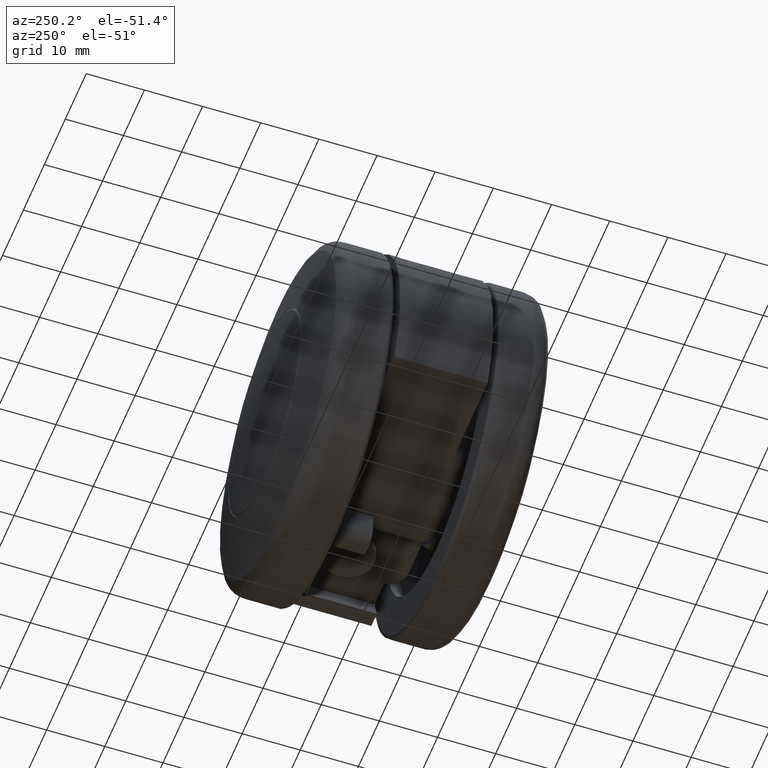
[diagram: clean part render]
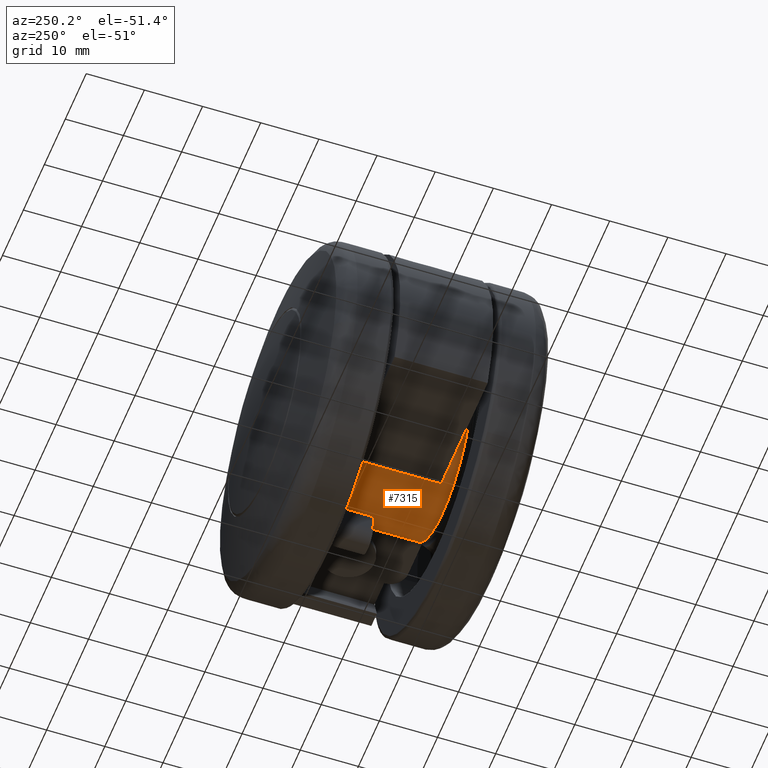
[diagram: same view with one face highlighted and labeled with its STEP entity id]
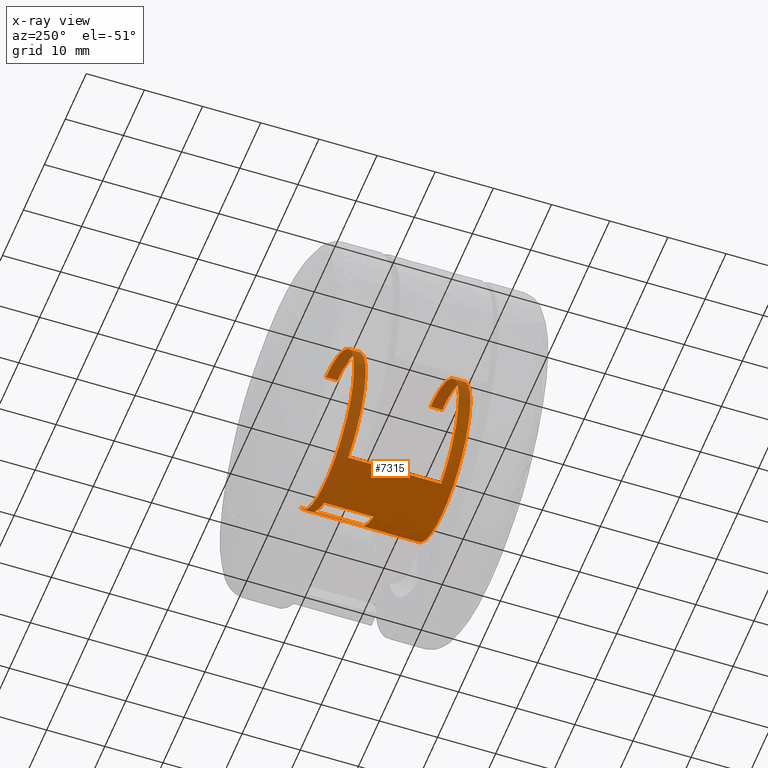
[diagram: x-ray of the same camera — body ghosted, the highlighted face saturated]
A machine part, auxiliary view. The second image highlights one B-rep face of the part: STEP entity #7315.
The next image is the same camera in x-ray: the body ghosted, the highlighted face saturated — about 38% of this face is hidden behind the body in this view.
In plain terms, the highlighted face is a freeform B-spline surface patch.
Its self-contained STEP definition (entity closure, byte-faithful):
#5000=CARTESIAN_POINT('',(0.0,10.0,13.500000000000000));
#5001=VERTEX_POINT('',#5000);
#5034=CARTESIAN_POINT('',(12.0,10.0,-6.184658438426480));
#5035=VERTEX_POINT('',#5034);
#5063=CARTESIAN_POINT('',(0.0,10.0,13.500000000000000));
#5064=CARTESIAN_POINT('',(-11.512032645037300,10.0,13.500000000000000));
#5065=CARTESIAN_POINT('',(-13.330507916871690,10.0,2.132500569336663));
#5066=CARTESIAN_POINT('',(-15.148983188706090,10.0,-9.234998861326675));
#5067=CARTESIAN_POINT('',(-4.211454181077892,10.0,-12.826287603226490));
#5068=CARTESIAN_POINT('',(6.726074826550300,10.0,-16.417576345126307));
#5069=CARTESIAN_POINT('',(12.000000000000011,10.0,-6.184658438426480));
#5077=(BOUNDED_CURVE()B_SPLINE_CURVE(2,(#5063,#5064,#5065,#5066,#5067,#5068,#5069),.UNSPECIFIED.,.F.,.U.)B_SPLINE_CURVE_WITH_KNOTS((3,2,2,3),(0.0,0.333333333333333,0.666666666666667,1.0),.UNSPECIFIED.)CURVE()GEOMETRIC_REPRESENTATION_ITEM()RATIONAL_B_SPLINE_CURVE((1.0,0.760908340451085,1.0,0.760908340451085,1.0,0.760908340451085,1.0))REPRESENTATION_ITEM(''));
#5078=EDGE_CURVE('',#5001,#5035,#5077,.T.);
#5112=CARTESIAN_POINT('',(0.0,-10.0,13.500000000000000));
#5113=VERTEX_POINT('',#5112);
#5129=CARTESIAN_POINT('',(12.0,-10.0,-6.184658438426480));
#5130=VERTEX_POINT('',#5129);
#5131=CARTESIAN_POINT('',(12.000000000000011,-10.0,-6.184658438426474));
#5132=CARTESIAN_POINT('',(6.726074826550309,-10.0,-16.417576345126310));
#5133=CARTESIAN_POINT('',(-4.211454181077886,-10.0,-12.826287603226490));
#5134=CARTESIAN_POINT('',(-15.148983188706080,-10.0,-9.234998861326682));
#5135=CARTESIAN_POINT('',(-13.330507916871690,-10.0,2.132500569336657));
#5136=CARTESIAN_POINT('',(-11.512032645037301,-10.0,13.500000000000004));
#5137=CARTESIAN_POINT('',(0.0,-10.0,13.500000000000000));
#5145=(BOUNDED_CURVE()B_SPLINE_CURVE(2,(#5131,#5132,#5133,#5134,#5135,#5136,#5137),.UNSPECIFIED.,.F.,.U.)B_SPLINE_CURVE_WITH_KNOTS((3,2,2,3),(0.0,0.333333333333333,0.666666666666667,1.0),.UNSPECIFIED.)CURVE()GEOMETRIC_REPRESENTATION_ITEM()RATIONAL_B_SPLINE_CURVE((1.0,0.760908340451085,1.0,0.760908340451085,1.0,0.760908340451085,1.0))REPRESENTATION_ITEM(''));
#5146=EDGE_CURVE('',#5130,#5113,#5145,.T.);
#5716=CARTESIAN_POINT('',(11.0,0.0,-7.826237921249259));
#5717=VERTEX_POINT('',#5716);
#5723=CARTESIAN_POINT('',(5.0,0.0,-12.539936203984460));
#5724=VERTEX_POINT('',#5723);
#5725=CARTESIAN_POINT('',(4.999999999999996,0.0,-12.539936203984450));
#5726=CARTESIAN_POINT('',(8.694342234395652,0.0,-11.066905490629710));
#5727=CARTESIAN_POINT('',(11.0,0.0,-7.826237921249261));
#5735=(BOUNDED_CURVE()B_SPLINE_CURVE(2,(#5725,#5726,#5727),.UNSPECIFIED.,.F.,.U.)CURVE()GEOMETRIC_REPRESENTATION_ITEM()QUASI_UNIFORM_CURVE()RATIONAL_B_SPLINE_CURVE((1.0,0.959238558692230,1.0))REPRESENTATION_ITEM(''));
#5736=EDGE_CURVE('',#5724,#5717,#5735,.T.);
#5790=CARTESIAN_POINT('',(5.0,8.500000000000000,-12.539936203984441));
#5791=VERTEX_POINT('',#5790);
#5797=CARTESIAN_POINT('',(11.0,8.500000000000000,-7.826237921249259));
#5798=VERTEX_POINT('',#5797);
#5799=CARTESIAN_POINT('',(5.000000000000004,8.500000000000000,-12.539936203984450));
#5800=CARTESIAN_POINT('',(8.694342234395650,8.500000000000000,-11.066905490629708));
#5801=CARTESIAN_POINT('',(11.0,8.500000000000000,-7.826237921249261));
#5809=(BOUNDED_CURVE()B_SPLINE_CURVE(2,(#5799,#5800,#5801),.UNSPECIFIED.,.F.,.U.)CURVE()GEOMETRIC_REPRESENTATION_ITEM()QUASI_UNIFORM_CURVE()RATIONAL_B_SPLINE_CURVE((1.0,0.959238558692230,1.0))REPRESENTATION_ITEM(''));
#5810=EDGE_CURVE('',#5791,#5798,#5809,.T.);
#5872=CARTESIAN_POINT('',(11.0,8.500000000000000,-7.826237921249259));
#5873=CARTESIAN_POINT('',(11.0,0.0,-7.826237921249259));
#5874=QUASI_UNIFORM_CURVE('',1,(#5872,#5873),.UNSPECIFIED.,.F.,.U.);
#5875=EDGE_CURVE('',#5798,#5717,#5874,.T.);
#5886=CARTESIAN_POINT('',(5.0,8.500000000000000,-12.539936203984441));
#5887=CARTESIAN_POINT('',(5.0,0.0,-12.539936203984460));
#5888=QUASI_UNIFORM_CURVE('',1,(#5886,#5887),.UNSPECIFIED.,.F.,.U.);
#5889=EDGE_CURVE('',#5791,#5724,#5888,.T.);
#5942=CARTESIAN_POINT('',(0.0,7.999999999999789,13.500000000000000));
#5943=VERTEX_POINT('',#5942);
#5956=CARTESIAN_POINT('',(0.0,7.999999999999789,13.500000000000000));
#5957=CARTESIAN_POINT('',(0.0,10.0,13.500000000000000));
#5958=QUASI_UNIFORM_CURVE('',1,(#5956,#5957),.UNSPECIFIED.,.F.,.U.);
#5959=EDGE_CURVE('',#5943,#5001,#5958,.T.);
#5975=CARTESIAN_POINT('',(0.0,-8.0,13.500000000000000));
#5976=VERTEX_POINT('',#5975);
#5982=CARTESIAN_POINT('',(0.0,-10.0,13.500000000000000));
#5983=CARTESIAN_POINT('',(0.0,-8.0,13.500000000000000));
#5984=QUASI_UNIFORM_CURVE('',1,(#5982,#5983),.UNSPECIFIED.,.F.,.U.);
#5985=EDGE_CURVE('',#5113,#5976,#5984,.T.);
#6235=CARTESIAN_POINT('',(12.0,10.0,-6.184658438426480));
#6236=CARTESIAN_POINT('',(12.0,-10.0,-6.184658438426480));
#6237=QUASI_UNIFORM_CURVE('',1,(#6235,#6236),.UNSPECIFIED.,.F.,.U.);
#6238=EDGE_CURVE('',#5035,#5130,#6237,.T.);
#6265=CARTESIAN_POINT('',(-5.099019513592780,7.999999999999789,-12.500000000000000));
#6266=VERTEX_POINT('',#6265);
#6272=CARTESIAN_POINT('',(-5.099019513592780,-8.0,-12.500000000000000));
#6273=VERTEX_POINT('',#6272);
#6274=CARTESIAN_POINT('',(-5.099019513592780,7.999999999999789,-12.500000000000000));
#6275=CARTESIAN_POINT('',(-5.099019513592780,-8.0,-12.500000000000000));
#6276=QUASI_UNIFORM_CURVE('',1,(#6274,#6275),.UNSPECIFIED.,.F.,.U.);
#6277=EDGE_CURVE('',#6266,#6273,#6276,.T.);
#7225=CARTESIAN_POINT('',(-5.099019513592777,-8.0,-12.500000000000000));
#7226=CARTESIAN_POINT('',(-15.385684458492184,-8.0,-8.303847577293375));
#7227=CARTESIAN_POINT('',(-13.247641299491770,-8.0,2.598076211353310));
#7228=CARTESIAN_POINT('',(-11.109598140491357,-8.0,13.499999999999998));
#7229=CARTESIAN_POINT('',(0.0,-8.0,13.500000000000000));
#7237=(BOUNDED_CURVE()B_SPLINE_CURVE(2,(#7225,#7226,#7227,#7228,#7229),.UNSPECIFIED.,.F.,.U.)B_SPLINE_CURVE_WITH_KNOTS((3,2,3),(0.0,0.500000000000000,1.0),.UNSPECIFIED.)CURVE()GEOMETRIC_REPRESENTATION_ITEM()RATIONAL_B_SPLINE_CURVE((1.0,0.772156101358357,1.0,0.772156101358357,1.0))REPRESENTATION_ITEM(''));
#7238=EDGE_CURVE('',#6273,#5976,#7237,.T.);
#7249=CARTESIAN_POINT('',(0.0,7.999999999999789,13.500000000000000));
#7250=CARTESIAN_POINT('',(-11.109598140491356,7.999999999999789,13.499999999999996));
#7251=CARTESIAN_POINT('',(-13.247641299491770,7.999999999999789,2.598076211353315));
#7252=CARTESIAN_POINT('',(-15.385684458492182,7.999999999999789,-8.303847577293372));
#7253=CARTESIAN_POINT('',(-5.099019513592782,7.999999999999789,-12.500000000000000));
#7261=(BOUNDED_CURVE()B_SPLINE_CURVE(2,(#7249,#7250,#7251,#7252,#7253),.UNSPECIFIED.,.F.,.U.)B_SPLINE_CURVE_WITH_KNOTS((3,2,3),(0.0,0.500000000000000,1.0),.UNSPECIFIED.)CURVE()GEOMETRIC_REPRESENTATION_ITEM()RATIONAL_B_SPLINE_CURVE((1.0,0.772156101358357,1.0,0.772156101358357,1.0))REPRESENTATION_ITEM(''));
#7262=EDGE_CURVE('',#5943,#6266,#7261,.T.);
#7277=CARTESIAN_POINT('',(12.157783383951241,10.500000000000000,-5.868415730750427));
#7278=CARTESIAN_POINT('',(12.157783383951241,-10.512499999999999,-5.868415730750427));
#7279=CARTESIAN_POINT('',(7.026401320377255,10.500000000000002,-16.499263041434656));
#7280=CARTESIAN_POINT('',(7.026401320377255,-10.512500000000001,-16.499263041434656));
#7281=CARTESIAN_POINT('',(-4.193992448291368,10.500000000000000,-12.832007923301591));
#7282=CARTESIAN_POINT('',(-4.193992448291368,-10.512499999999999,-12.832007923301591));
#7283=CARTESIAN_POINT('',(-15.414386216959988,10.500000000000002,-9.164752805168533));
#7284=CARTESIAN_POINT('',(-15.414386216959988,-10.512500000000001,-9.164752805168533));
#7285=CARTESIAN_POINT('',(-13.276821363236760,10.500000000000000,2.444588817920089));
#7286=CARTESIAN_POINT('',(-13.276821363236760,-10.512499999999999,2.444588817920089));
#7287=CARTESIAN_POINT('',(-11.139256509513517,10.500000000000002,14.053930441008712));
#7288=CARTESIAN_POINT('',(-11.139256509513517,-10.512500000000001,14.053930441008712));
#7289=CARTESIAN_POINT('',(0.651480740693012,10.500000000000000,13.484271313070870));
#7290=CARTESIAN_POINT('',(0.651480740693012,-10.512499999999999,13.484271313070870));
#7298=(BOUNDED_SURFACE()B_SPLINE_SURFACE(1,2,((#7277,#7279,#7281,#7283,#7285,#7287,#7289),(#7278,#7280,#7282,#7284,#7286,#7288,#7290)),.UNSPECIFIED.,.F.,.F.,.U.)B_SPLINE_SURFACE_WITH_KNOTS((2,2),(3,2,2,3),(0.0,21.012499999999999),(0.0,20.279340339526222,40.558680679052443,60.838021018578658),.UNSPECIFIED.)GEOMETRIC_REPRESENTATION_ITEM()RATIONAL_B_SPLINE_SURFACE(((1.0,0.752797991535748,1.0,0.752797991535748,1.0,0.752797991535748,1.0),(1.0,0.752797991535748,1.0,0.752797991535748,1.0,0.752797991535748,1.0)))REPRESENTATION_ITEM('')SURFACE());
#7299=ORIENTED_EDGE('',*,*,#6238,.T.);
#7300=ORIENTED_EDGE('',*,*,#5146,.T.);
#7301=ORIENTED_EDGE('',*,*,#5985,.T.);
#7302=ORIENTED_EDGE('',*,*,#7238,.F.);
#7303=ORIENTED_EDGE('',*,*,#6277,.F.);
#7304=ORIENTED_EDGE('',*,*,#7262,.F.);
#7305=ORIENTED_EDGE('',*,*,#5959,.T.);
#7306=ORIENTED_EDGE('',*,*,#5078,.T.);
#7307=EDGE_LOOP('',(#7299,#7300,#7301,#7302,#7303,#7304,#7305,#7306));
#7308=FACE_OUTER_BOUND('',#7307,.T.);
#7309=ORIENTED_EDGE('',*,*,#5875,.F.);
#7310=ORIENTED_EDGE('',*,*,#5810,.F.);
#7311=ORIENTED_EDGE('',*,*,#5889,.T.);
#7312=ORIENTED_EDGE('',*,*,#5736,.T.);
#7313=EDGE_LOOP('',(#7309,#7310,#7311,#7312));
#7314=FACE_BOUND('',#7313,.T.);
#7315=ADVANCED_FACE('',(#7308,#7314),#7298,.T.);